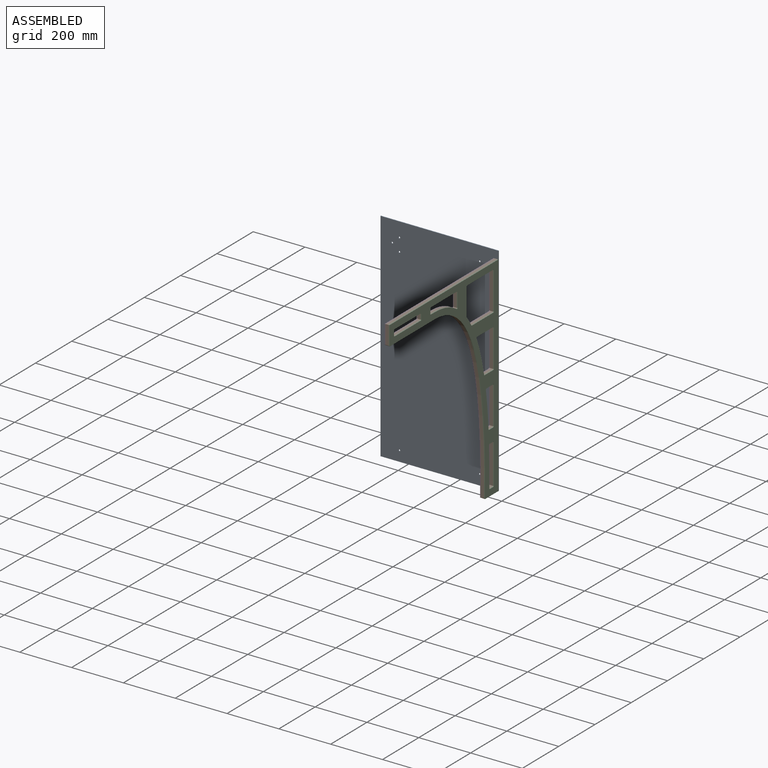
[diagram: assembled view]
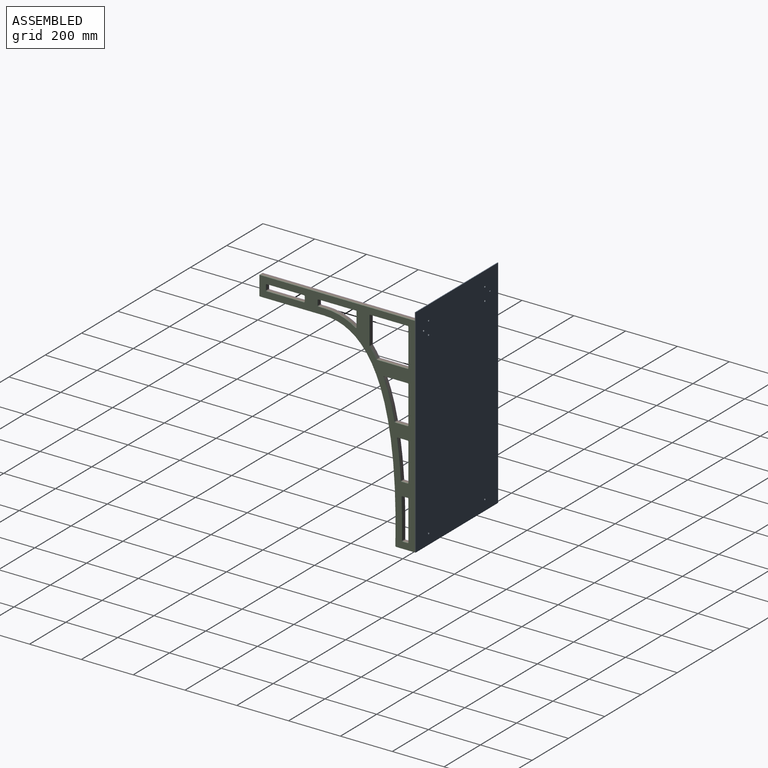
[diagram: assembled view, second angle]
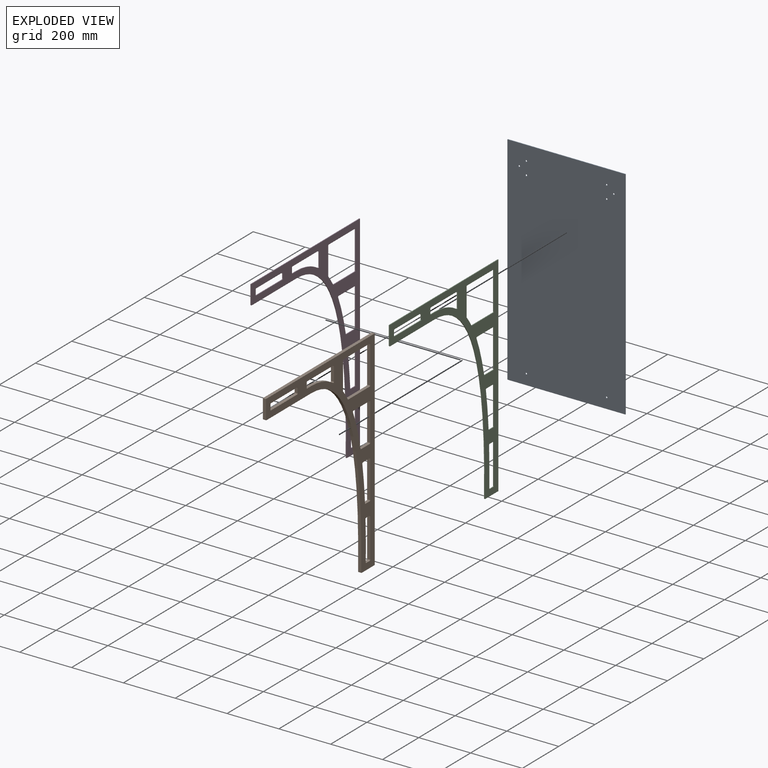
[diagram: exploded view]
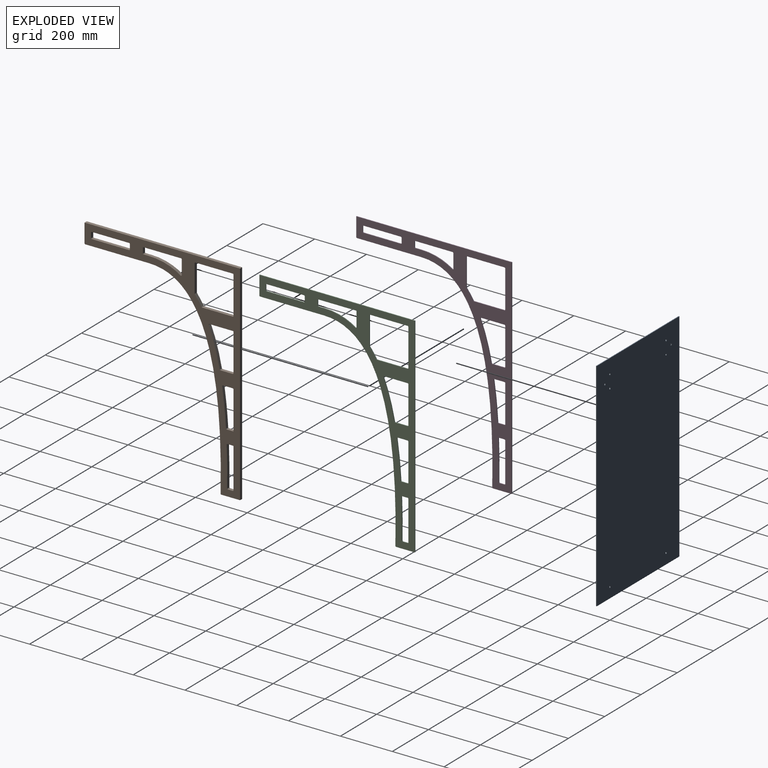
[diagram: exploded view, second angle]
ASSEMBLY  parts=4 mates=3
PART A: 14 faces, bbox 455x3x838 mm
  f0: plane 455x3mm, normal (0,0,1), area 1365mm2, adj f1,f11,f12,f13
  f1: plane 838x3mm, normal (-1,0,0), area 2514mm2, adj f0,f2,f12,f13
  f2: plane 455x3mm, normal (0,0,-1), area 1365mm2, adj f1,f11,f12,f13
  f3: cylinder r=3.25mm len=6.5mm, axis (0,1,0), area 61.3mm2, adj f12,f13
  f4: cylinder r=3.25mm len=6.5mm, axis (0,1,0), area 61.3mm2, adj f12,f13
  f5: cylinder r=3.25mm len=6.5mm, axis (0,1,0), area 61.3mm2, adj f12,f13
  f6: cylinder r=3.25mm len=6.5mm, axis (0,1,0), area 61.3mm2, adj f12,f13
  f7: cylinder r=3.25mm len=6.5mm, axis (0,1,0), area 61.3mm2, adj f12,f13
  f8: cylinder r=3.25mm len=6.5mm, axis (0,1,0), area 61.3mm2, adj f12,f13
  f9: cylinder r=3.25mm len=6.5mm, axis (0,1,0), area 61.3mm2, adj f12,f13
  f10: cylinder r=3.25mm len=6.5mm, axis (0,1,0), area 61.3mm2, adj f12,f13
  f11: plane 838x3mm, normal (1,0,0), area 2514mm2, adj f0,f2,f12,f13
  f12: plane 838x455mm, normal (0,-1,0), area 381024.5mm2, adj f0,f1,f2,f3,f4,f5,f6,f7
  f13: plane 838x455mm, normal (0,1,0), area 381024.5mm2, adj f0,f1,f2,f3,f4,f5,f6,f7
PART B: 61 faces, bbox 600x12x808 mm
  f0: cylinder r=3mm len=12mm, axis (0,-1,0), area 56.5mm2, adj f1,f58,f59,f60
  f1: plane 144x12mm, normal (-1,0,0), area 1728mm2, adj f0,f2,f59,f60
  f2: cylinder r=3mm len=12mm, axis (0,-1,0), area 56.5mm2, adj f1,f3,f59,f60
  f3: plane 144x12mm, normal (0,0,-1), area 1728mm2, adj f2,f4,f59,f60
  f4: cylinder r=3mm len=12mm, axis (0,-1,0), area 56.5mm2, adj f3,f5,f59,f60
  f5: plane 106.32x12mm, normal (1,0,0), area 1275.9mm2, adj f4,f6,f59,f60
  f6: cylinder r=3mm len=12mm, axis (0,-1,0), area 24.4mm2, adj f5,f7,f59,f60
  f7: extruded ~37.34x25.9mm, area 545.7mm2, adj f6,f8,f59,f60
  f8: cylinder r=3mm len=12mm, axis (0,-1,0), area 37.1mm2, adj f7,f58,f59,f60
  f9: cylinder r=3mm len=12mm, axis (0,-1,0), area 56.5mm2, adj f10,f52,f59,f60
  f10: plane 37.73x12mm, normal (0,0,-1), area 452.8mm2, adj f9,f11,f59,f60
  f11: cylinder r=3mm len=12mm, axis (0,-1,0), area 61.9mm2, adj f10,f12,f59,f60
  f12: extruded ~143.74x14.78mm, area 1734.5mm2, adj f11,f13,f59,f60
  f13: cylinder r=3mm len=12mm, axis (0,-1,0), area 54.3mm2, adj f12,f14,f59,f60
  f14: plane 22.93x12mm, normal (0,0,1), area 275.2mm2, adj f13,f15,f59,f60
  f15: cylinder r=3mm len=12mm, axis (0,-1,0), area 56.5mm2, adj f14,f52,f59,f60
  f16: plane 71.94x12mm, normal (0,0,-1), area 863.2mm2, adj f17,f53,f59,f60
  f17: cylinder r=3mm len=12mm, axis (0,-1,0), area 57.3mm2, adj f16,f18,f59,f60
  f18: extruded ~729.94x275.76mm, area 10261.8mm2, adj f17,f19,f59,f60
  f19: plane 247x12mm, normal (0,0,-1), area 2964mm2, adj f18,f20,f59,f60
  f20: cylinder r=3mm len=12mm, axis (0,-1,0), area 56.5mm2, adj f19,f21,f59,f60
  f21: plane 72x12mm, normal (-1,0,0), area 864mm2, adj f20,f22,f59,f60
  f22: plane 600x12mm, normal (0,0,1), area 7200mm2, adj f21,f53,f59,f60
  f23: cylinder r=3mm len=12mm, axis (0,-1,0), area 56.5mm2, adj f24,f54,f59,f60
  f24: plane 19x12mm, normal (1,0,0), area 228mm2, adj f23,f25,f59,f60
  f25: cylinder r=3mm len=12mm, axis (0,-1,0), area 56.5mm2, adj f24,f26,f59,f60
  f26: plane 144x12mm, normal (0,0,1), area 1728mm2, adj f25,f27,f59,f60
  f27: cylinder r=3mm len=12mm, axis (0,-1,0), area 56.5mm2, adj f26,f28,f59,f60
  f28: plane 19x12mm, normal (-1,0,0), area 228mm2, adj f27,f29,f59,f60
  f29: cylinder r=3mm len=12mm, axis (0,-1,0), area 56.5mm2, adj f28,f54,f59,f60
  f30: cylinder r=3mm len=12mm, axis (0,-1,0), area 56.5mm2, adj f31,f55,f59,f60
  f31: plane 144x12mm, normal (0,0,-1), area 1728mm2, adj f30,f32,f59,f60
  f32: cylinder r=3mm len=12mm, axis (0,-1,0), area 56.5mm2, adj f31,f33,f59,f60
  f33: plane 19x12mm, normal (1,0,0), area 228mm2, adj f32,f34,f59,f60
  f34: cylinder r=3mm len=12mm, axis (0,-1,0), area 56.5mm2, adj f33,f35,f59,f60
  f35: plane 22x12mm, normal (0,0,1), area 264mm2, adj f34,f36,f59,f60
  f36: extruded ~120.35x35.1mm, area 1526.6mm2, adj f35,f37,f59,f60
  f37: cylinder r=3mm len=12mm, axis (0,-1,0), area 77.6mm2, adj f36,f55,f59,f60
  f38: cylinder r=3mm len=12mm, axis (0,-1,0), area 49.5mm2, adj f39,f56,f59,f60
  f39: plane 47.46x12mm, normal (0,0,1), area 569.5mm2, adj f38,f40,f59,f60
  f40: cylinder r=3mm len=12mm, axis (0,-1,0), area 56.5mm2, adj f39,f41,f59,f60
  f41: plane 144x12mm, normal (-1,0,0), area 1728mm2, adj f40,f42,f59,f60
  f42: cylinder r=3mm len=12mm, axis (0,-1,0), area 56.5mm2, adj f41,f43,f59,f60
  f43: plane 89.76x12mm, normal (0,0,-1), area 1077.1mm2, adj f42,f44,f59,f60
  f44: cylinder r=3mm len=12mm, axis (0,-1,0), area 70.9mm2, adj f43,f56,f59,f60
  f45: cylinder r=3mm len=12mm, axis (0,-1,0), area 56.5mm2, adj f46,f57,f59,f60
  f46: plane 20.13x12mm, normal (0,0,-1), area 241.5mm2, adj f45,f47,f59,f60
  f47: cylinder r=3mm len=12mm, axis (0,-1,0), area 57.9mm2, adj f46,f48,f59,f60
  f48: extruded ~151.85x12mm, area 1822.4mm2, adj f47,f49,f59,f60
  f49: cylinder r=3mm len=12mm, axis (0,-1,0), area 57mm2, adj f48,f50,f59,f60
  f50: plane 18.5x12mm, normal (0,0,1), area 222mm2, adj f49,f51,f59,f60
  f51: cylinder r=3mm len=12mm, axis (0,-1,0), area 56.5mm2, adj f50,f57,f59,f60
  f52: plane 144x12mm, normal (-1,0,0), area 1728mm2, adj f9,f15,f59,f60
  f53: plane 808x12mm, normal (1,0,0), area 9696mm2, adj f16,f22,f59,f60
  f54: plane 144x12mm, normal (0,0,-1), area 1728mm2, adj f23,f29,f59,f60
  f55: plane 54.59x12mm, normal (-1,0,0), area 655.1mm2, adj f30,f37,f59,f60
  f56: extruded ~143.42x42.12mm, area 1796.7mm2, adj f38,f44,f59,f60
  f57: plane 152x12mm, normal (-1,0,0), area 1824mm2, adj f45,f51,f59,f60
  f58: plane 117.86x12mm, normal (0,0,1), area 1414.3mm2, adj f0,f8,f59,f60
  f59: plane 808x600mm, normal (0,1,0), area 78798mm2, adj f0,f1,f2,f3,f4,f5,f6,f7
  f60: plane 808x600mm, normal (0,-1,0), area 78798mm2, adj f0,f1,f2,f3,f4,f5,f6,f7
PART C: 61 faces, bbox 600x3x808 mm
  f0: cylinder r=3mm len=3mm, axis (0,1,0), area 14.1mm2, adj f1,f58,f59,f60
  f1: plane 117.86x3mm, normal (0,0,1), area 353.6mm2, adj f0,f2,f59,f60
  f2: cylinder r=3mm len=3mm, axis (0,1,0), area 9.3mm2, adj f1,f3,f59,f60
  f3: extruded ~37.34x25.9mm, area 136.4mm2, adj f2,f4,f59,f60
  f4: cylinder r=3mm len=3mm, axis (0,1,0), area 6.1mm2, adj f3,f5,f59,f60
  f5: plane 106.32x3mm, normal (1,0,0), area 319mm2, adj f4,f6,f59,f60
  f6: cylinder r=3mm len=3mm, axis (0,1,0), area 14.1mm2, adj f5,f7,f59,f60
  f7: plane 144x3mm, normal (0,0,-1), area 432mm2, adj f6,f8,f59,f60
  f8: cylinder r=3mm len=3mm, axis (0,1,0), area 14.1mm2, adj f7,f58,f59,f60
  f9: cylinder r=3mm len=3mm, axis (0,1,0), area 14.1mm2, adj f10,f52,f59,f60
  f10: plane 144x3mm, normal (-1,0,0), area 432mm2, adj f9,f11,f59,f60
  f11: cylinder r=3mm len=3mm, axis (0,1,0), area 14.1mm2, adj f10,f12,f59,f60
  f12: plane 22.93x3mm, normal (0,0,1), area 68.8mm2, adj f11,f13,f59,f60
  f13: cylinder r=3mm len=3mm, axis (0,1,0), area 13.6mm2, adj f12,f14,f59,f60
  f14: extruded ~143.74x14.78mm, area 433.6mm2, adj f13,f15,f59,f60
  f15: cylinder r=3mm len=3.45mm, axis (0,1,0), area 15.5mm2, adj f14,f52,f59,f60
  f16: plane 71.94x3mm, normal (0,0,-1), area 215.8mm2, adj f17,f53,f59,f60
  f17: plane 808x3mm, normal (1,0,0), area 2424mm2, adj f16,f18,f59,f60
  f18: plane 600x3mm, normal (0,0,1), area 1800mm2, adj f17,f19,f59,f60
  f19: plane 72x3mm, normal (-1,0,0), area 216mm2, adj f18,f20,f59,f60
  f20: cylinder r=3mm len=3mm, axis (0,1,0), area 14.1mm2, adj f19,f21,f59,f60
  f21: plane 247x3mm, normal (0,0,-1), area 741mm2, adj f20,f22,f59,f60
  f22: extruded ~729.94x275.76mm, area 2565.4mm2, adj f21,f53,f59,f60
  f23: cylinder r=3mm len=3mm, axis (0,1,0), area 14.1mm2, adj f24,f54,f59,f60
  f24: plane 144x3mm, normal (0,0,-1), area 432mm2, adj f23,f25,f59,f60
  f25: cylinder r=3mm len=3mm, axis (0,1,0), area 14.1mm2, adj f24,f26,f59,f60
  f26: plane 19x3mm, normal (-1,0,0), area 57mm2, adj f25,f27,f59,f60
  f27: cylinder r=3mm len=3mm, axis (0,1,0), area 14.1mm2, adj f26,f28,f59,f60
  f28: plane 144x3mm, normal (0,0,1), area 432mm2, adj f27,f29,f59,f60
  f29: cylinder r=3mm len=3mm, axis (0,1,0), area 14.1mm2, adj f28,f54,f59,f60
  f30: cylinder r=3mm len=3mm, axis (0,1,0), area 14.1mm2, adj f31,f55,f59,f60
  f31: plane 54.59x3mm, normal (-1,0,0), area 163.8mm2, adj f30,f32,f59,f60
  f32: cylinder r=3mm len=4.65mm, axis (0,1,0), area 19.4mm2, adj f31,f33,f59,f60
  f33: extruded ~120.35x35.1mm, area 381.6mm2, adj f32,f34,f59,f60
  f34: plane 22x3mm, normal (0,0,1), area 66mm2, adj f33,f35,f59,f60
  f35: cylinder r=3mm len=3mm, axis (0,1,0), area 14.1mm2, adj f34,f36,f59,f60
  f36: plane 19x3mm, normal (1,0,0), area 57mm2, adj f35,f37,f59,f60
  f37: cylinder r=3mm len=3mm, axis (0,1,0), area 14.1mm2, adj f36,f55,f59,f60
  f38: cylinder r=3mm len=3mm, axis (0,1,0), area 12.4mm2, adj f39,f56,f59,f60
  f39: extruded ~143.42x42.12mm, area 449.2mm2, adj f38,f40,f59,f60
  f40: cylinder r=3mm len=4.16mm, axis (0,1,0), area 17.7mm2, adj f39,f41,f59,f60
  f41: plane 89.76x3mm, normal (0,0,-1), area 269.3mm2, adj f40,f42,f59,f60
  f42: cylinder r=3mm len=3mm, axis (0,1,0), area 14.1mm2, adj f41,f43,f59,f60
  f43: plane 144x3mm, normal (-1,0,0), area 432mm2, adj f42,f44,f59,f60
  f44: cylinder r=3mm len=3mm, axis (0,1,0), area 14.1mm2, adj f43,f56,f59,f60
  f45: cylinder r=3mm len=3mm, axis (0,1,0), area 14.1mm2, adj f46,f57,f59,f60
  f46: plane 152x3mm, normal (-1,0,0), area 456mm2, adj f45,f47,f59,f60
  f47: cylinder r=3mm len=3mm, axis (0,1,0), area 14.1mm2, adj f46,f48,f59,f60
  f48: plane 18.5x3mm, normal (0,0,1), area 55.5mm2, adj f47,f49,f59,f60
  f49: cylinder r=3mm len=3.04mm, axis (0,1,0), area 14.3mm2, adj f48,f50,f59,f60
  f50: extruded ~151.85x3mm, area 455.6mm2, adj f49,f51,f59,f60
  f51: cylinder r=3mm len=3.11mm, axis (0,1,0), area 14.5mm2, adj f50,f57,f59,f60
  f52: plane 37.73x3mm, normal (0,0,-1), area 113.2mm2, adj f9,f15,f59,f60
  f53: cylinder r=3mm len=3.06mm, axis (0,1,0), area 14.3mm2, adj f16,f22,f59,f60
  f54: plane 19x3mm, normal (1,0,0), area 57mm2, adj f23,f29,f59,f60
  f55: plane 144x3mm, normal (0,0,-1), area 432mm2, adj f30,f37,f59,f60
  f56: plane 47.46x3mm, normal (0,0,1), area 142.4mm2, adj f38,f44,f59,f60
  f57: plane 20.13x3mm, normal (0,0,-1), area 60.4mm2, adj f45,f51,f59,f60
  f58: plane 144x3mm, normal (-1,0,0), area 432mm2, adj f0,f8,f59,f60
  f59: plane 808x600mm, normal (0,-1,0), area 78798mm2, adj f0,f1,f2,f3,f4,f5,f6,f7
  f60: plane 808x600mm, normal (0,1,0), area 78798mm2, adj f0,f1,f2,f3,f4,f5,f6,f7
PART D: 61 faces, bbox 600x3x808 mm
  f0: cylinder r=3mm len=3mm, axis (0,1,0), area 14.1mm2, adj f1,f58,f59,f60
  f1: plane 117.86x3mm, normal (0,0,1), area 353.6mm2, adj f0,f2,f59,f60
  f2: cylinder r=3mm len=3mm, axis (0,1,0), area 9.3mm2, adj f1,f3,f59,f60
  f3: extruded ~37.34x25.9mm, area 136.4mm2, adj f2,f4,f59,f60
  f4: cylinder r=3mm len=3mm, axis (0,1,0), area 6.1mm2, adj f3,f5,f59,f60
  f5: plane 106.32x3mm, normal (1,0,0), area 319mm2, adj f4,f6,f59,f60
  f6: cylinder r=3mm len=3mm, axis (0,1,0), area 14.1mm2, adj f5,f7,f59,f60
  f7: plane 144x3mm, normal (0,0,-1), area 432mm2, adj f6,f8,f59,f60
  f8: cylinder r=3mm len=3mm, axis (0,1,0), area 14.1mm2, adj f7,f58,f59,f60
  f9: cylinder r=3mm len=3mm, axis (0,1,0), area 14.1mm2, adj f10,f52,f59,f60
  f10: plane 144x3mm, normal (-1,0,0), area 432mm2, adj f9,f11,f59,f60
  f11: cylinder r=3mm len=3mm, axis (0,1,0), area 14.1mm2, adj f10,f12,f59,f60
  f12: plane 22.93x3mm, normal (0,0,1), area 68.8mm2, adj f11,f13,f59,f60
  f13: cylinder r=3mm len=3mm, axis (0,1,0), area 13.6mm2, adj f12,f14,f59,f60
  f14: extruded ~143.74x14.78mm, area 433.6mm2, adj f13,f15,f59,f60
  f15: cylinder r=3mm len=3.45mm, axis (0,1,0), area 15.5mm2, adj f14,f52,f59,f60
  f16: plane 71.94x3mm, normal (0,0,-1), area 215.8mm2, adj f17,f53,f59,f60
  f17: plane 808x3mm, normal (1,0,0), area 2424mm2, adj f16,f18,f59,f60
  f18: plane 600x3mm, normal (0,0,1), area 1800mm2, adj f17,f19,f59,f60
  f19: plane 72x3mm, normal (-1,0,0), area 216mm2, adj f18,f20,f59,f60
  f20: cylinder r=3mm len=3mm, axis (0,1,0), area 14.1mm2, adj f19,f21,f59,f60
  f21: plane 247x3mm, normal (0,0,-1), area 741mm2, adj f20,f22,f59,f60
  f22: extruded ~729.94x275.76mm, area 2565.4mm2, adj f21,f53,f59,f60
  f23: cylinder r=3mm len=3mm, axis (0,1,0), area 14.1mm2, adj f24,f54,f59,f60
  f24: plane 144x3mm, normal (0,0,-1), area 432mm2, adj f23,f25,f59,f60
  f25: cylinder r=3mm len=3mm, axis (0,1,0), area 14.1mm2, adj f24,f26,f59,f60
  f26: plane 19x3mm, normal (-1,0,0), area 57mm2, adj f25,f27,f59,f60
  f27: cylinder r=3mm len=3mm, axis (0,1,0), area 14.1mm2, adj f26,f28,f59,f60
  f28: plane 144x3mm, normal (0,0,1), area 432mm2, adj f27,f29,f59,f60
  f29: cylinder r=3mm len=3mm, axis (0,1,0), area 14.1mm2, adj f28,f54,f59,f60
  f30: cylinder r=3mm len=3mm, axis (0,1,0), area 14.1mm2, adj f31,f55,f59,f60
  f31: plane 54.59x3mm, normal (-1,0,0), area 163.8mm2, adj f30,f32,f59,f60
  f32: cylinder r=3mm len=4.65mm, axis (0,1,0), area 19.4mm2, adj f31,f33,f59,f60
  f33: extruded ~120.35x35.1mm, area 381.6mm2, adj f32,f34,f59,f60
  f34: plane 22x3mm, normal (0,0,1), area 66mm2, adj f33,f35,f59,f60
  f35: cylinder r=3mm len=3mm, axis (0,1,0), area 14.1mm2, adj f34,f36,f59,f60
  f36: plane 19x3mm, normal (1,0,0), area 57mm2, adj f35,f37,f59,f60
  f37: cylinder r=3mm len=3mm, axis (0,1,0), area 14.1mm2, adj f36,f55,f59,f60
  f38: cylinder r=3mm len=3mm, axis (0,1,0), area 12.4mm2, adj f39,f56,f59,f60
  f39: extruded ~143.42x42.12mm, area 449.2mm2, adj f38,f40,f59,f60
  f40: cylinder r=3mm len=4.16mm, axis (0,1,0), area 17.7mm2, adj f39,f41,f59,f60
  f41: plane 89.76x3mm, normal (0,0,-1), area 269.3mm2, adj f40,f42,f59,f60
  f42: cylinder r=3mm len=3mm, axis (0,1,0), area 14.1mm2, adj f41,f43,f59,f60
  f43: plane 144x3mm, normal (-1,0,0), area 432mm2, adj f42,f44,f59,f60
  f44: cylinder r=3mm len=3mm, axis (0,1,0), area 14.1mm2, adj f43,f56,f59,f60
  f45: cylinder r=3mm len=3mm, axis (0,1,0), area 14.1mm2, adj f46,f57,f59,f60
  f46: plane 152x3mm, normal (-1,0,0), area 456mm2, adj f45,f47,f59,f60
  f47: cylinder r=3mm len=3mm, axis (0,1,0), area 14.1mm2, adj f46,f48,f59,f60
  f48: plane 18.5x3mm, normal (0,0,1), area 55.5mm2, adj f47,f49,f59,f60
  f49: cylinder r=3mm len=3.04mm, axis (0,1,0), area 14.3mm2, adj f48,f50,f59,f60
  f50: extruded ~151.85x3mm, area 455.6mm2, adj f49,f51,f59,f60
  f51: cylinder r=3mm len=3.11mm, axis (0,1,0), area 14.5mm2, adj f50,f57,f59,f60
  f52: plane 37.73x3mm, normal (0,0,-1), area 113.2mm2, adj f9,f15,f59,f60
  f53: cylinder r=3mm len=3.06mm, axis (0,1,0), area 14.3mm2, adj f16,f22,f59,f60
  f54: plane 19x3mm, normal (1,0,0), area 57mm2, adj f23,f29,f59,f60
  f55: plane 144x3mm, normal (0,0,-1), area 432mm2, adj f30,f37,f59,f60
  f56: plane 47.46x3mm, normal (0,0,1), area 142.4mm2, adj f38,f44,f59,f60
  f57: plane 20.13x3mm, normal (0,0,-1), area 60.4mm2, adj f45,f51,f59,f60
  f58: plane 144x3mm, normal (-1,0,0), area 432mm2, adj f0,f8,f59,f60
  f59: plane 808x600mm, normal (0,-1,0), area 78798mm2, adj f0,f1,f2,f3,f4,f5,f6,f7
  f60: plane 808x600mm, normal (0,1,0), area 78798mm2, adj f0,f1,f2,f3,f4,f5,f6,f7
PLACE A t=(161.04,28.34,-1106.25)mm
PLACE B rot(axis=(0,0,1),90deg) t=(566.14,-574.66,-370.15)mm
PLACE C rot(axis=(0,0,1),90deg) t=(566.14,-574.66,-370.15)mm
PLACE D rot(axis=(0,0,1),90deg) t=(566.14,-574.66,-370.15)mm
MATE fastened B.f59 <-> D.f59  axis (-1,0,0) through (554.14,-148.99,-506.35)mm
MATE fastened C.f60 <-> B.f60  axis (-1,0,0) through (566.14,-149.66,-504.47)mm
MATE fastened C.f17 <-> A.f12  axis (0,1,0) through (569.14,25.34,-1178.15)mm
